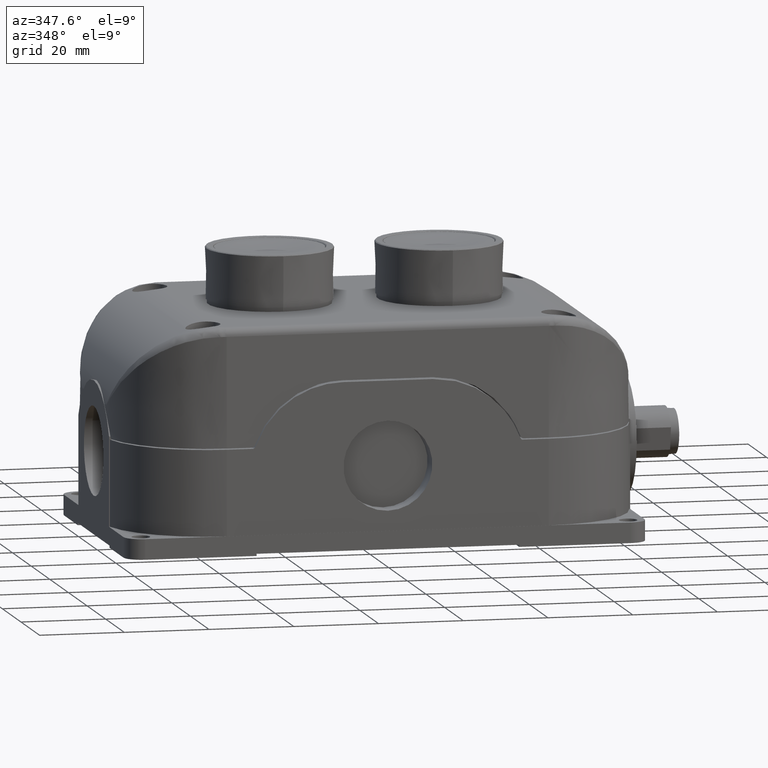
[diagram: clean part render]
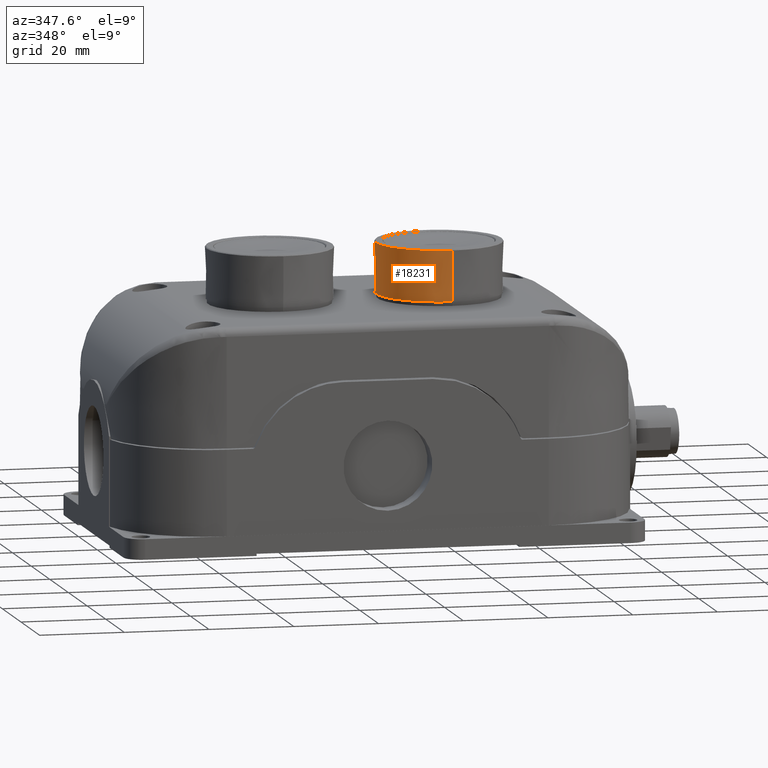
[diagram: same view with one face highlighted and labeled with its STEP entity id]
A machine part, auxiliary view. The second image highlights one B-rep face of the part: STEP entity #18231.
In plain terms, the highlighted conical surface has half-angle 0.5 deg.
Its self-contained STEP definition (entity closure, byte-faithful):
#993 = EDGE_LOOP ( 'NONE', ( #3614, #14090, #10622, #9176, #1799 ) ) ;
#1799 = ORIENTED_EDGE ( 'NONE', *, *, #18494, .T. ) ;
#2123 = VERTEX_POINT ( 'NONE', #17704 ) ;
#2637 = FACE_OUTER_BOUND ( 'NONE', #993, .T. ) ;
#2987 = CIRCLE ( 'NONE', #20812, 0.5865454603504136610 ) ;
#3146 = DIRECTION ( 'NONE',  ( -1.164380332955012001E-16, 1.746570499432519850E-16, 1.000000000000000000 ) ) ;
#3297 = CARTESIAN_POINT ( 'NONE',  ( 3.208661417322829390, -1.423117759614840772, 2.610236520290834861 ) ) ;
#3518 = CARTESIAN_POINT ( 'NONE',  ( 3.208661417322829390, -0.8365722992644271105, 2.610236520290830864 ) ) ;
#3614 = ORIENTED_EDGE ( 'NONE', *, *, #10890, .F. ) ;
#4146 = AXIS2_PLACEMENT_3D ( 'NONE', #15636, #3146, #14310 ) ;
#4306 = DIRECTION ( 'NONE',  ( 0.000000000000000000, -1.000000000000000000, -7.452034130912079961E-15 ) ) ;
#4375 = VERTEX_POINT ( 'NONE', #23200 ) ;
#5236 = DIRECTION ( 'NONE',  ( -1.153649073154061478E-16, 0.008726535498376599212, 0.9999619230641711987 ) ) ;
#7181 = DIRECTION ( 'NONE',  ( 1.224646799147350002E-16, -1.281858686408449938E-16, -1.000000000000000000 ) ) ;
#8192 = LINE ( 'NONE', #10241, #19653 ) ;
#8808 = CONICAL_SURFACE ( 'NONE', #16166, 0.5865454603504136610, 0.008726646259974137065 ) ;
#9176 = ORIENTED_EDGE ( 'NONE', *, *, #10922, .T. ) ;
#9886 = CARTESIAN_POINT ( 'NONE',  ( 2.622115956972418171, -1.423117759614840994, 2.610236520290834861 ) ) ;
#9960 = VERTEX_POINT ( 'NONE', #21840 ) ;
#10145 = DIRECTION ( 'NONE',  ( 0.000000000000000000, -1.000000000000000000, 0.000000000000000000 ) ) ;
#10241 = CARTESIAN_POINT ( 'NONE',  ( 3.208661417322829390, -2.009663219965254655, 2.610236520290830864 ) ) ;
#10622 = ORIENTED_EDGE ( 'NONE', *, *, #18733, .T. ) ;
#10890 = EDGE_CURVE ( 'NONE', #2123, #22831, #21843, .T. ) ;
#10922 = EDGE_CURVE ( 'NONE', #9960, #11771, #18284, .T. ) ;
#11318 = AXIS2_PLACEMENT_3D ( 'NONE', #3297, #7181, #23417 ) ;
#11771 = VERTEX_POINT ( 'NONE', #9886 ) ;
#12262 = CIRCLE ( 'NONE', #4146, 0.5824225280690117357 ) ;
#13042 = CARTESIAN_POINT ( 'NONE',  ( 3.208661417322829390, -1.423117759614840772, 2.610236520290834861 ) ) ;
#14090 = ORIENTED_EDGE ( 'NONE', *, *, #17971, .T. ) ;
#14310 = DIRECTION ( 'NONE',  ( 0.000000000000000000, -1.000000000000000000, 0.000000000000000000 ) ) ;
#15576 = DIRECTION ( 'NONE',  ( -1.164335996919793922E-16, -0.008726535498376248798, 0.9999619230641711987 ) ) ;
#15636 = CARTESIAN_POINT ( 'NONE',  ( 3.208661417322829390, -1.423117759614840994, 2.137795275590550936 ) ) ;
#16166 = AXIS2_PLACEMENT_3D ( 'NONE', #17545, #23487, #10145 ) ;
#17163 = DIRECTION ( 'NONE',  ( 1.224646799147350002E-16, -1.281858686408449938E-16, -1.000000000000000000 ) ) ;
#17545 = CARTESIAN_POINT ( 'NONE',  ( 3.208661417322829390, -1.423117759614840772, 2.610236520290830864 ) ) ;
#17704 = CARTESIAN_POINT ( 'NONE',  ( 3.208661417322829390, -0.8406952315458293690, 2.137795275590550936 ) ) ;
#17914 = VECTOR ( 'NONE', #5236, 39.37007874015748143 ) ;
#17971 = EDGE_CURVE ( 'NONE', #2123, #4375, #12262, .T. ) ;
#18231 = ADVANCED_FACE ( 'NONE', ( #2637 ), #8808, .T. ) ;
#18284 = CIRCLE ( 'NONE', #11318, 0.5865454603504136610 ) ;
#18494 = EDGE_CURVE ( 'NONE', #11771, #22831, #2987, .T. ) ;
#18733 = EDGE_CURVE ( 'NONE', #4375, #9960, #8192, .T. ) ;
#19653 = VECTOR ( 'NONE', #15576, 39.37007874015748143 ) ;
#20812 = AXIS2_PLACEMENT_3D ( 'NONE', #13042, #17163, #4306 ) ;
#21840 = CARTESIAN_POINT ( 'NONE',  ( 3.208661417322829390, -2.009663219965254655, 2.610236520290834861 ) ) ;
#21843 = LINE ( 'NONE', #3518, #17914 ) ;
#22708 = CARTESIAN_POINT ( 'NONE',  ( 3.208661417322829390, -0.8365722992644271105, 2.610236520290834861 ) ) ;
#22831 = VERTEX_POINT ( 'NONE', #22708 ) ;
#23200 = CARTESIAN_POINT ( 'NONE',  ( 3.208661417322829390, -2.005540287683852618, 2.137795275590550936 ) ) ;
#23417 = DIRECTION ( 'NONE',  ( 0.000000000000000000, -1.000000000000000000, -7.452034130912079961E-15 ) ) ;
#23487 = DIRECTION ( 'NONE',  ( -1.164380332955012001E-16, 1.746570499432519850E-16, 1.000000000000000000 ) ) ;